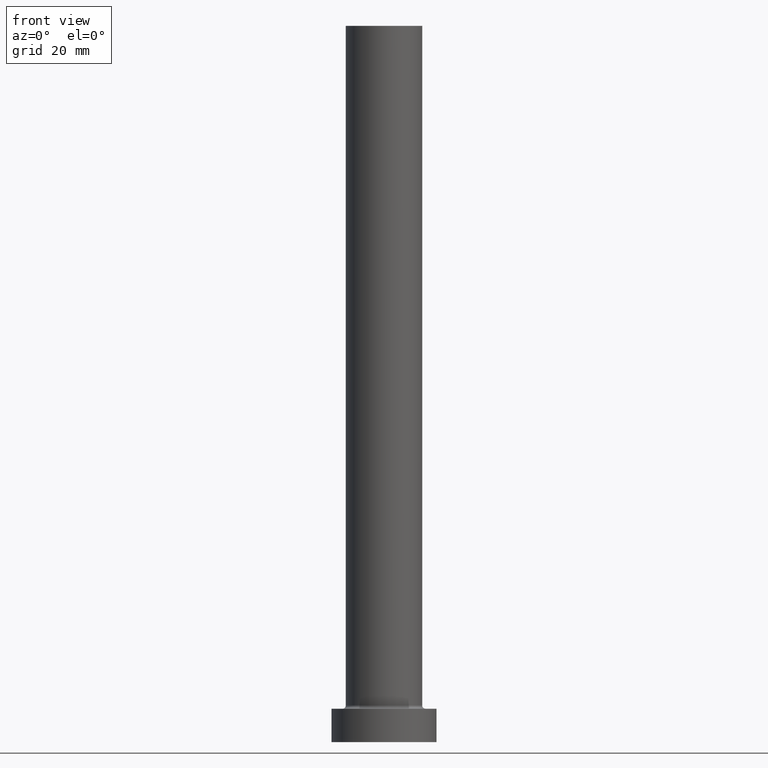
[diagram: clean part render]
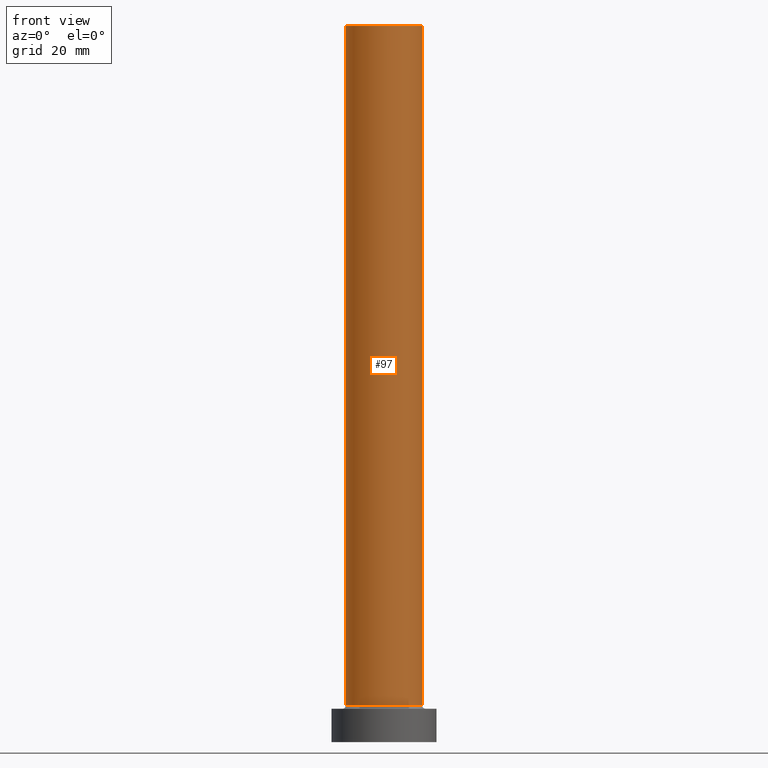
[diagram: same view with one face highlighted and labeled with its STEP entity id]
A machine part, front view. The second image highlights one B-rep face of the part: STEP entity #97.
In plain terms, the highlighted cylindrical surface (partial cylindrical patch) has radius 8 mm, axis along (-0, -0, -1).
Its self-contained STEP definition (entity closure, byte-faithful):
#17 = ORIENTED_EDGE ( 'NONE', *, *, #82, .T. ) ;
#25 = CARTESIAN_POINT ( 'NONE',  ( 0.000000000000000000, 0.000000000000000000, 7.700000000000012612 ) ) ;
#40 = VERTEX_POINT ( 'NONE', #72 ) ;
#45 = CIRCLE ( 'NONE', #387, 8.000000000000000000 ) ;
#63 = CARTESIAN_POINT ( 'NONE',  ( 8.000000000000000000, 9.797174393178825657E-16, 7.700000000000012612 ) ) ;
#64 = VERTEX_POINT ( 'NONE', #148 ) ;
#72 = CARTESIAN_POINT ( 'NONE',  ( 8.000000000000000000, 9.797174393178825657E-16, 150.0000000000000000 ) ) ;
#77 = LINE ( 'NONE', #449, #460 ) ;
#82 = EDGE_CURVE ( 'NONE', #64, #102, #315, .T. ) ;
#89 = VERTEX_POINT ( 'NONE', #63 ) ;
#97 = ADVANCED_FACE ( 'NONE', ( #201 ), #422, .T. ) ;
#102 = VERTEX_POINT ( 'NONE', #457 ) ;
#108 = ORIENTED_EDGE ( 'NONE', *, *, #127, .T. ) ;
#127 = EDGE_CURVE ( 'NONE', #102, #89, #45, .T. ) ;
#148 = CARTESIAN_POINT ( 'NONE',  ( -8.000000000000000000, 0.000000000000000000, 150.0000000000000000 ) ) ;
#163 = CARTESIAN_POINT ( 'NONE',  ( 0.000000000000000000, 0.000000000000000000, 150.0000000000000000 ) ) ;
#166 = DIRECTION ( 'NONE',  ( 0.000000000000000000, 0.000000000000000000, 1.000000000000000000 ) ) ;
#167 = ORIENTED_EDGE ( 'NONE', *, *, #328, .F. ) ;
#199 = DIRECTION ( 'NONE',  ( -0.000000000000000000, -0.000000000000000000, -1.000000000000000000 ) ) ;
#201 = FACE_OUTER_BOUND ( 'NONE', #420, .T. ) ;
#202 = AXIS2_PLACEMENT_3D ( 'NONE', #204, #352, #428 ) ;
#204 = CARTESIAN_POINT ( 'NONE',  ( 0.000000000000000000, 0.000000000000000000, 150.0000000000000000 ) ) ;
#233 = AXIS2_PLACEMENT_3D ( 'NONE', #163, #448, #296 ) ;
#258 = CIRCLE ( 'NONE', #233, 8.000000000000000000 ) ;
#279 = CARTESIAN_POINT ( 'NONE',  ( -8.000000000000000000, 0.000000000000000000, 150.0000000000000000 ) ) ;
#296 = DIRECTION ( 'NONE',  ( 1.000000000000000000, 0.000000000000000000, 0.000000000000000000 ) ) ;
#306 = DIRECTION ( 'NONE',  ( 1.000000000000000000, 0.000000000000000000, 0.000000000000000000 ) ) ;
#315 = LINE ( 'NONE', #279, #418 ) ;
#328 = EDGE_CURVE ( 'NONE', #64, #40, #258, .T. ) ;
#332 = DIRECTION ( 'NONE',  ( -0.000000000000000000, -0.000000000000000000, -1.000000000000000000 ) ) ;
#352 = DIRECTION ( 'NONE',  ( -0.000000000000000000, -0.000000000000000000, -1.000000000000000000 ) ) ;
#387 = AXIS2_PLACEMENT_3D ( 'NONE', #25, #166, #306 ) ;
#418 = VECTOR ( 'NONE', #199, 1000.000000000000000 ) ;
#420 = EDGE_LOOP ( 'NONE', ( #442, #167, #17, #108 ) ) ;
#422 = CYLINDRICAL_SURFACE ( 'NONE', #202, 8.000000000000000000 ) ;
#428 = DIRECTION ( 'NONE',  ( -1.000000000000000000, 0.000000000000000000, 0.000000000000000000 ) ) ;
#434 = EDGE_CURVE ( 'NONE', #40, #89, #77, .T. ) ;
#442 = ORIENTED_EDGE ( 'NONE', *, *, #434, .F. ) ;
#448 = DIRECTION ( 'NONE',  ( 0.000000000000000000, 0.000000000000000000, 1.000000000000000000 ) ) ;
#449 = CARTESIAN_POINT ( 'NONE',  ( 8.000000000000000000, 9.797174393178825657E-16, 150.0000000000000000 ) ) ;
#457 = CARTESIAN_POINT ( 'NONE',  ( -8.000000000000000000, 0.000000000000000000, 7.700000000000012612 ) ) ;
#460 = VECTOR ( 'NONE', #332, 1000.000000000000000 ) ;